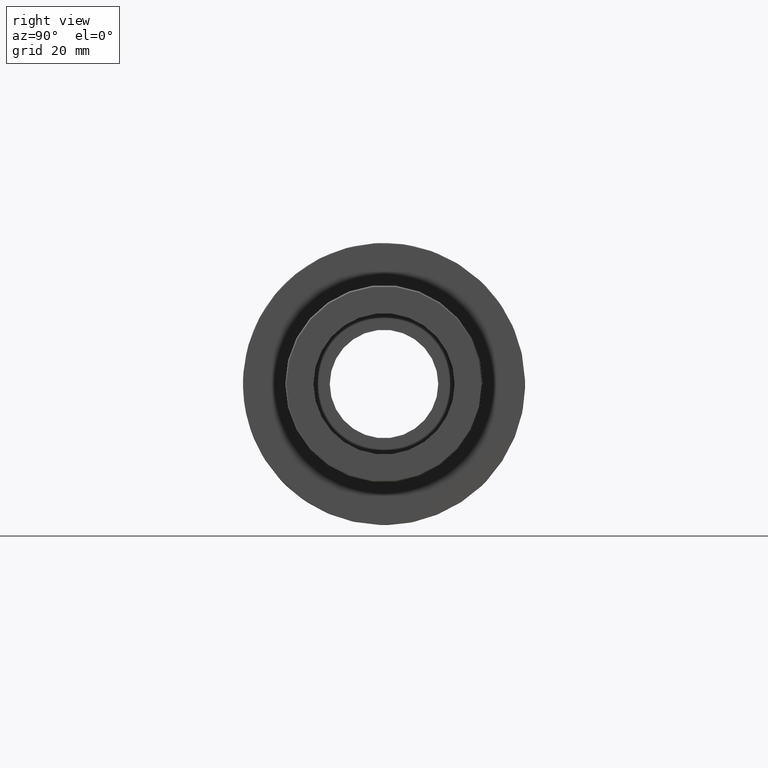
[diagram: clean part render]
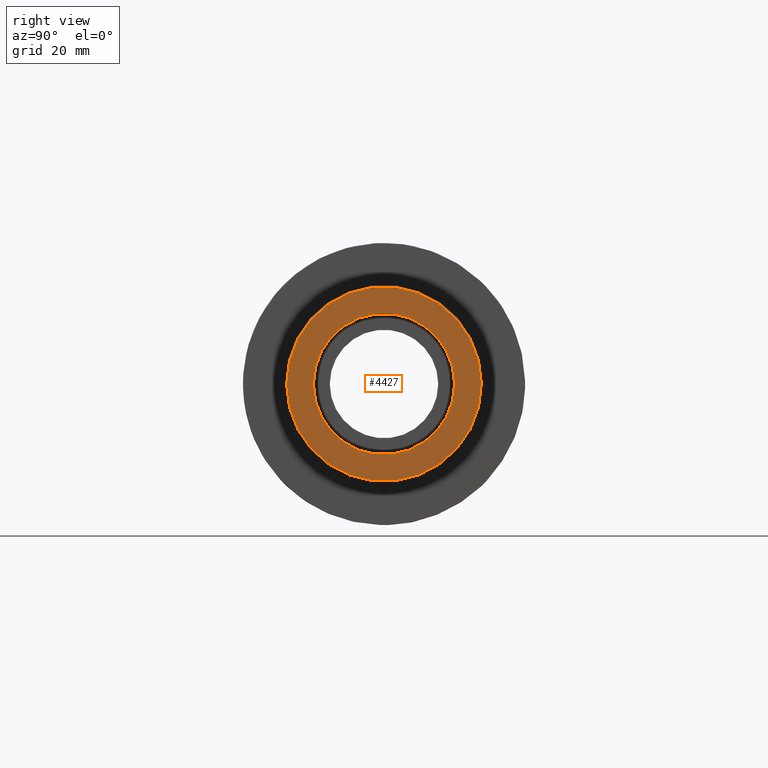
[diagram: same view with one face highlighted and labeled with its STEP entity id]
A machine part, right view. The second image highlights one B-rep face of the part: STEP entity #4427.
In plain terms, the highlighted planar face has unit normal (1, 0, 0).
Its self-contained STEP definition (entity closure, byte-faithful):
#60=FACE_BOUND('',#1190,.T.);
#107=PLANE('',#4766);
#912=FACE_OUTER_BOUND('',#1189,.T.);
#1189=EDGE_LOOP('',(#3354));
#1190=EDGE_LOOP('',(#3355));
#1624=CIRCLE('',#4763,20.87121);
#1626=CIRCLE('',#4767,15.1455);
#1979=VERTEX_POINT('',#7269);
#1981=VERTEX_POINT('',#7275);
#2491=EDGE_CURVE('',#1979,#1979,#1624,.T.);
#2493=EDGE_CURVE('',#1981,#1981,#1626,.T.);
#3354=ORIENTED_EDGE('',*,*,#2491,.F.);
#3355=ORIENTED_EDGE('',*,*,#2493,.F.);
#4427=ADVANCED_FACE('',(#912,#60),#107,.T.);
#4763=AXIS2_PLACEMENT_3D('',#7270,#5499,#5500);
#4766=AXIS2_PLACEMENT_3D('',#7274,#5505,#5506);
#4767=AXIS2_PLACEMENT_3D('',#7276,#5507,#5508);
#5499=DIRECTION('center_axis',(-1.,0.,0.));
#5500=DIRECTION('ref_axis',(0.,-1.,1.83697019872103E-16));
#5505=DIRECTION('center_axis',(1.,0.,0.));
#5506=DIRECTION('ref_axis',(0.,0.,-1.));
#5507=DIRECTION('center_axis',(1.,0.,0.));
#5508=DIRECTION('ref_axis',(0.,0.,-1.));
#7269=CARTESIAN_POINT('',(0.,20.87121,-6.38996513020806E-15));
#7270=CARTESIAN_POINT('Origin',(0.,0.,0.));
#7274=CARTESIAN_POINT('Origin',(0.,15.1455,0.));
#7275=CARTESIAN_POINT('',(0.,15.1455,0.));
#7276=CARTESIAN_POINT('Origin',(0.,0.,0.));